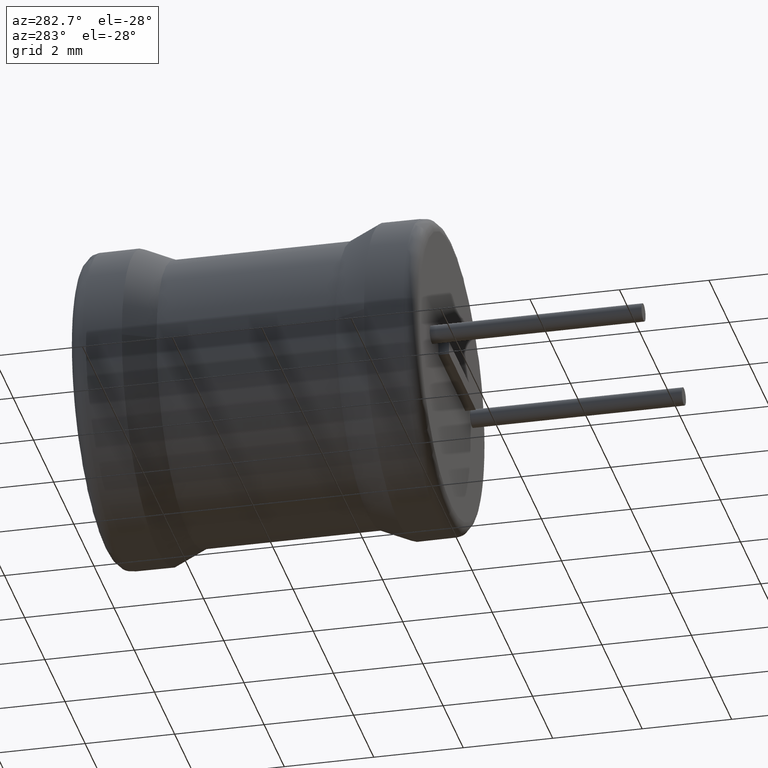
[diagram: clean part render]
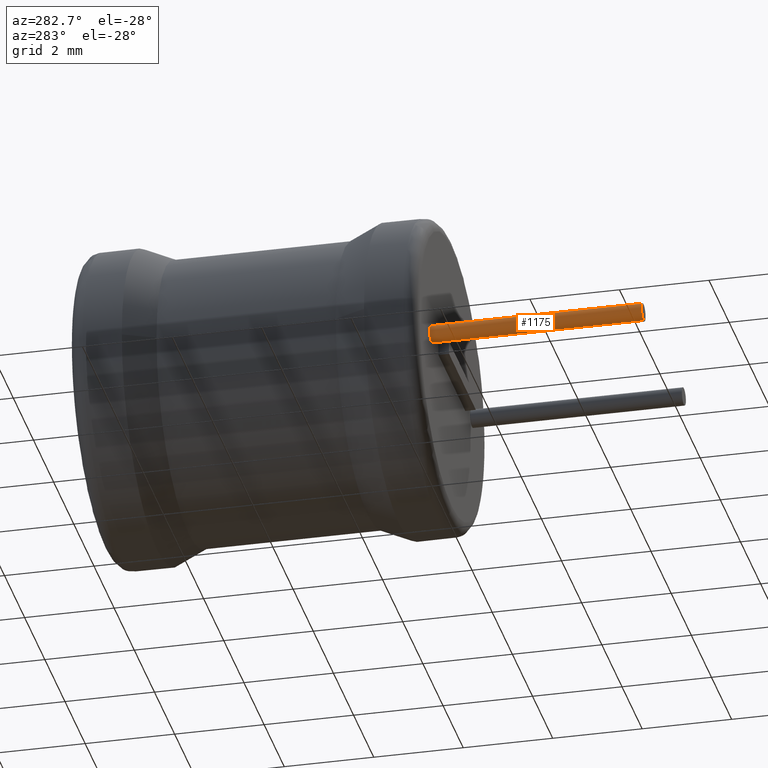
[diagram: same view with one face highlighted and labeled with its STEP entity id]
A machine part, auxiliary view. The second image highlights one B-rep face of the part: STEP entity #1175.
In plain terms, the highlighted cylindrical surface (edge-blend (fillet) strip) has radius 0.2 mm, axis along (-0, 1, -0).
Its self-contained STEP definition (entity closure, byte-faithful):
#193 = VERTEX_POINT ( 'NONE', #1120 ) ;
#223 = VERTEX_POINT ( 'NONE', #657 ) ;
#276 = ORIENTED_EDGE ( 'NONE', *, *, #602, .T. ) ;
#325 = VERTEX_POINT ( 'NONE', #2543 ) ;
#335 = DIRECTION ( 'NONE',  ( 0.0000000000000000000, -1.000000000000000000, 0.0000000000000000000 ) ) ;
#407 = EDGE_CURVE ( 'NONE', #223, #325, #1368, .T. ) ;
#533 = CARTESIAN_POINT ( 'NONE',  ( -2.000000000000000000, -4.735199999999999900, 0.0000000000000000000 ) ) ;
#554 = EDGE_CURVE ( 'NONE', #325, #193, #1705, .T. ) ;
#572 = LINE ( 'NONE', #2252, #1191 ) ;
#581 = AXIS2_PLACEMENT_3D ( 'NONE', #533, #335, #1227 ) ;
#602 = EDGE_CURVE ( 'NONE', #223, #788, #572, .T. ) ;
#611 = DIRECTION ( 'NONE',  ( -0.0000000000000000000, -1.000000000000000000, -0.0000000000000000000 ) ) ;
#654 = DIRECTION ( 'NONE',  ( 0.0000000000000000000, 0.0000000000000000000, 1.000000000000000000 ) ) ;
#657 = CARTESIAN_POINT ( 'NONE',  ( -2.000000000000000000, -4.735199999999999900, 0.2000000000000002300 ) ) ;
#750 = EDGE_CURVE ( 'NONE', #788, #193, #1908, .T. ) ;
#788 = VERTEX_POINT ( 'NONE', #1057 ) ;
#868 = DIRECTION ( 'NONE',  ( -0.0000000000000000000, 1.000000000000000000, -0.0000000000000000000 ) ) ;
#976 = VECTOR ( 'NONE', #2907, 1000.000000000000000 ) ;
#986 = AXIS2_PLACEMENT_3D ( 'NONE', #2916, #1816, #654 ) ;
#1051 = CARTESIAN_POINT ( 'NONE',  ( -2.000000000000000000, -4.735199999999999900, -0.2000000000000002300 ) ) ;
#1057 = CARTESIAN_POINT ( 'NONE',  ( -2.000000000000000000, 0.0000000000000000000, 0.2000000000000002300 ) ) ;
#1120 = CARTESIAN_POINT ( 'NONE',  ( -2.000000000000000000, 0.0000000000000000000, -0.2000000000000002300 ) ) ;
#1175 = ADVANCED_FACE ( 'NONE', ( #2591 ), #2161, .T. ) ;
#1191 = VECTOR ( 'NONE', #868, 1000.000000000000000 ) ;
#1227 = DIRECTION ( 'NONE',  ( 0.0000000000000000000, 0.0000000000000000000, -1.000000000000000000 ) ) ;
#1335 = AXIS2_PLACEMENT_3D ( 'NONE', #1988, #611, #2002 ) ;
#1368 = CIRCLE ( 'NONE', #581, 0.2000000000000002300 ) ;
#1705 = LINE ( 'NONE', #1051, #976 ) ;
#1816 = DIRECTION ( 'NONE',  ( -0.0000000000000000000, 1.000000000000000000, -0.0000000000000000000 ) ) ;
#1908 = CIRCLE ( 'NONE', #1335, 0.2000000000000002300 ) ;
#1961 = ORIENTED_EDGE ( 'NONE', *, *, #750, .T. ) ;
#1988 = CARTESIAN_POINT ( 'NONE',  ( -2.000000000000000000, 0.0000000000000000000, 0.0000000000000000000 ) ) ;
#2002 = DIRECTION ( 'NONE',  ( 0.0000000000000000000, 0.0000000000000000000, 1.000000000000000000 ) ) ;
#2034 = ORIENTED_EDGE ( 'NONE', *, *, #554, .F. ) ;
#2060 = ORIENTED_EDGE ( 'NONE', *, *, #407, .F. ) ;
#2161 = CYLINDRICAL_SURFACE ( 'NONE', #986, 0.2000000000000002300 ) ;
#2252 = CARTESIAN_POINT ( 'NONE',  ( -2.000000000000000000, -4.735199999999999900, 0.2000000000000002300 ) ) ;
#2321 = EDGE_LOOP ( 'NONE', ( #2034, #2060, #276, #1961 ) ) ;
#2543 = CARTESIAN_POINT ( 'NONE',  ( -2.000000000000000000, -4.735199999999999900, -0.2000000000000002300 ) ) ;
#2591 = FACE_OUTER_BOUND ( 'NONE', #2321, .T. ) ;
#2907 = DIRECTION ( 'NONE',  ( -0.0000000000000000000, 1.000000000000000000, -0.0000000000000000000 ) ) ;
#2916 = CARTESIAN_POINT ( 'NONE',  ( -2.000000000000000000, -4.735199999999999900, 0.0000000000000000000 ) ) ;